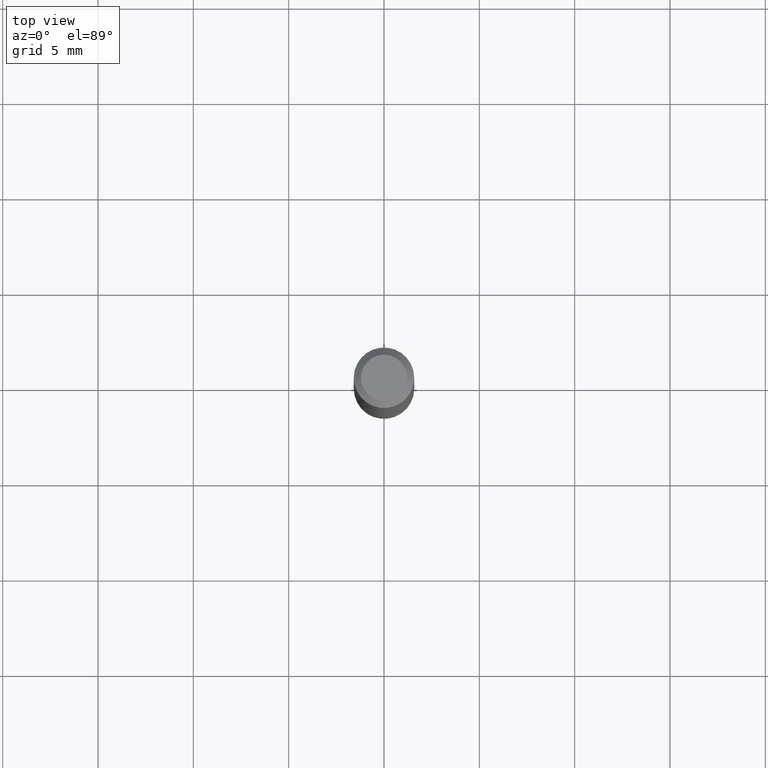
[diagram: clean part render]
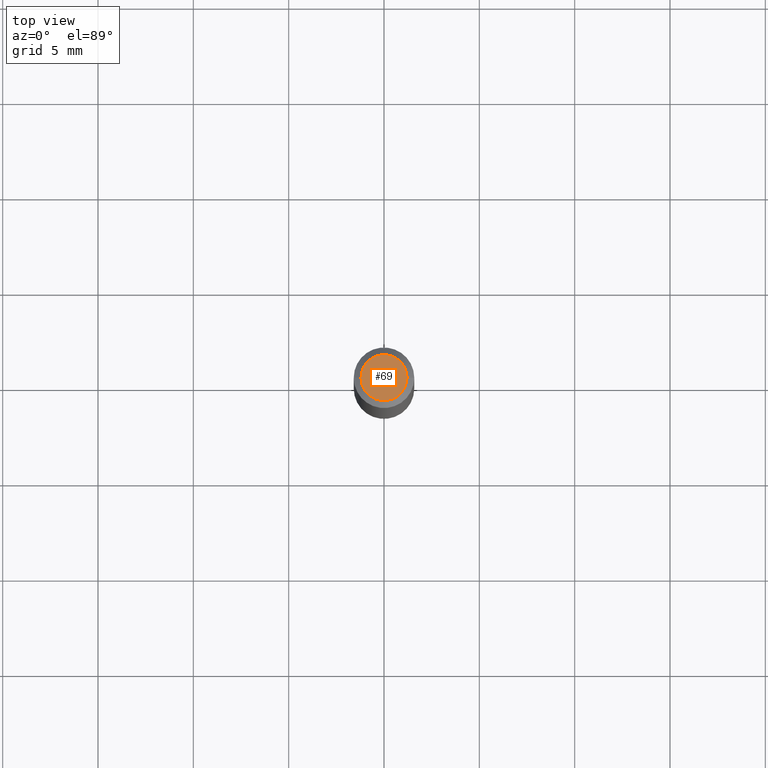
[diagram: same view with one face highlighted and labeled with its STEP entity id]
A machine part, top view. The second image highlights one B-rep face of the part: STEP entity #69.
In plain terms, the highlighted planar face has unit normal (0, -0, -1).
Its self-contained STEP definition (entity closure, byte-faithful):
#11 = CARTESIAN_POINT ( 'NONE',  ( -0.04750000000000000749, 3.578768372314221353E-16, 2.731847993664239060E-16 ) ) ;
#47 = PLANE ( 'NONE',  #63 ) ;
#63 = AXIS2_PLACEMENT_3D ( 'NONE', #249, #483, #117 ) ;
#69 = ADVANCED_FACE ( 'NONE', ( #478 ), #47, .F. ) ;
#117 = DIRECTION ( 'NONE',  ( -1.000000000000000000, 6.982962677686265922E-15, -4.876176775795935793E-29 ) ) ;
#128 = DIRECTION ( 'NONE',  ( -2.445468806185136597E-29, 3.491481338843145583E-15, 1.000000000000000000 ) ) ;
#175 = CIRCLE ( 'NONE', #353, 0.04750000000000000749 ) ;
#186 = DIRECTION ( 'NONE',  ( 1.000000000000000000, -6.982962677686266711E-15, 4.852736867747365086E-29 ) ) ;
#190 = VERTEX_POINT ( 'NONE', #11 ) ;
#203 = EDGE_CURVE ( 'NONE', #265, #190, #175, .T. ) ;
#245 = CIRCLE ( 'NONE', #471, 0.04750000000000000749 ) ;
#249 = CARTESIAN_POINT ( 'NONE',  ( 3.316907271900976589E-16, 0.04750000000000000749, -2.925296391183627249E-17 ) ) ;
#260 = EDGE_CURVE ( 'NONE', #190, #265, #245, .T. ) ;
#265 = VERTEX_POINT ( 'NONE', #293 ) ;
#283 = ORIENTED_EDGE ( 'NONE', *, *, #203, .T. ) ;
#285 = EDGE_LOOP ( 'NONE', ( #444, #283 ) ) ;
#293 = CARTESIAN_POINT ( 'NONE',  ( 0.04750000000000000749, -4.035134999187568762E-16, 2.731847993664288856E-16 ) ) ;
#332 = DIRECTION ( 'NONE',  ( 1.000000000000000000, -6.982962677686266711E-15, 4.852736867747365086E-29 ) ) ;
#353 = AXIS2_PLACEMENT_3D ( 'NONE', #370, #416, #186 ) ;
#370 = CARTESIAN_POINT ( 'NONE',  ( -6.680649051745406845E-45, 9.538196290434862081E-31, 2.731847993664263218E-16 ) ) ;
#416 = DIRECTION ( 'NONE',  ( -2.445468806185136597E-29, 3.491481338843145583E-15, 1.000000000000000000 ) ) ;
#444 = ORIENTED_EDGE ( 'NONE', *, *, #260, .T. ) ;
#471 = AXIS2_PLACEMENT_3D ( 'NONE', #489, #128, #332 ) ;
#478 = FACE_OUTER_BOUND ( 'NONE', #285, .T. ) ;
#483 = DIRECTION ( 'NONE',  ( 2.438088387897960049E-29, -3.491481338843145188E-15, -1.000000000000000000 ) ) ;
#489 = CARTESIAN_POINT ( 'NONE',  ( -6.680649051745406845E-45, 9.538196290434862081E-31, 2.731847993664263218E-16 ) ) ;